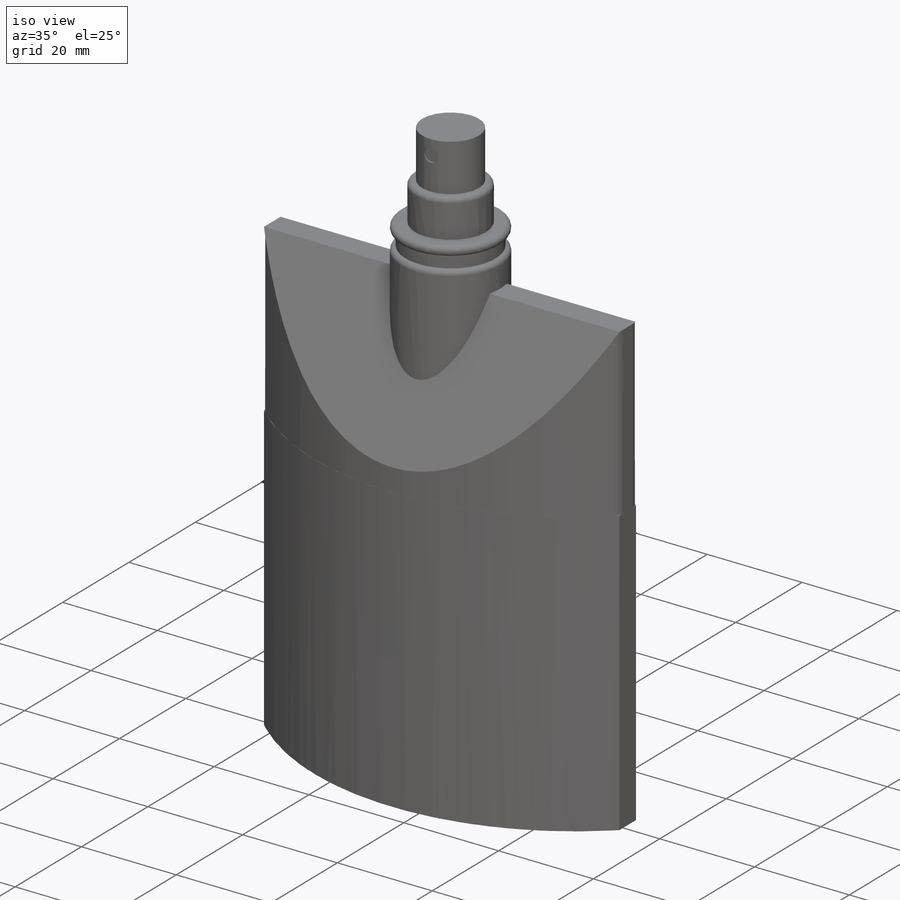
[diagram: iso view]
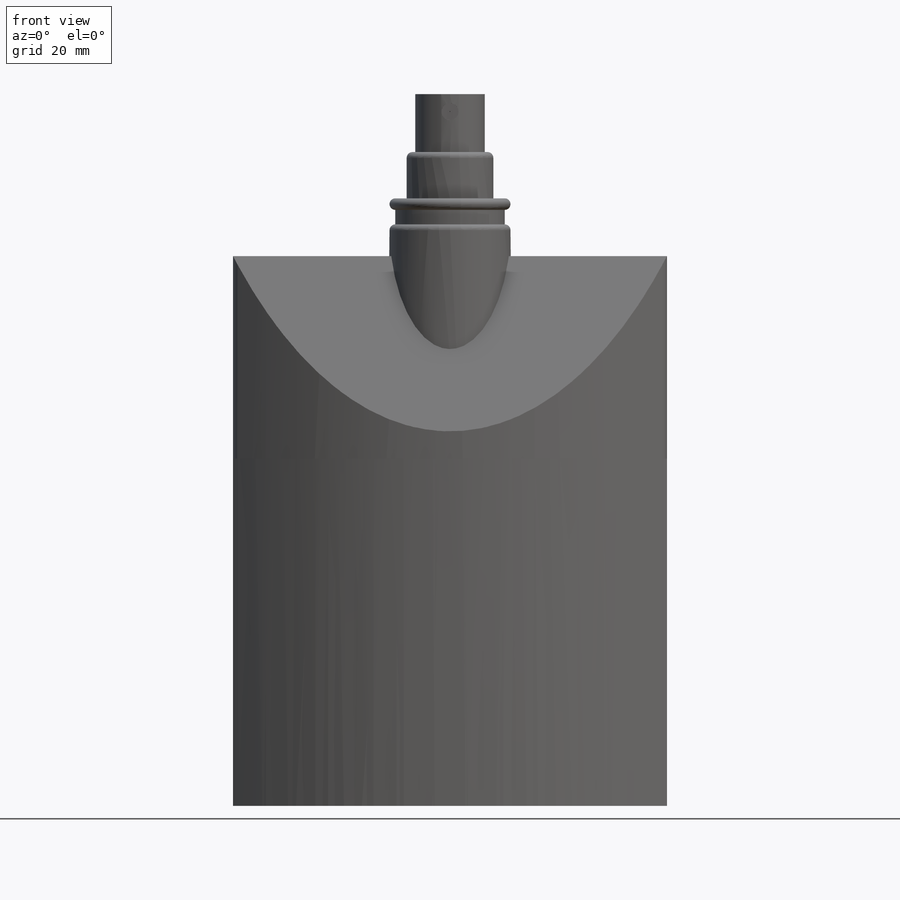
[diagram: front view]
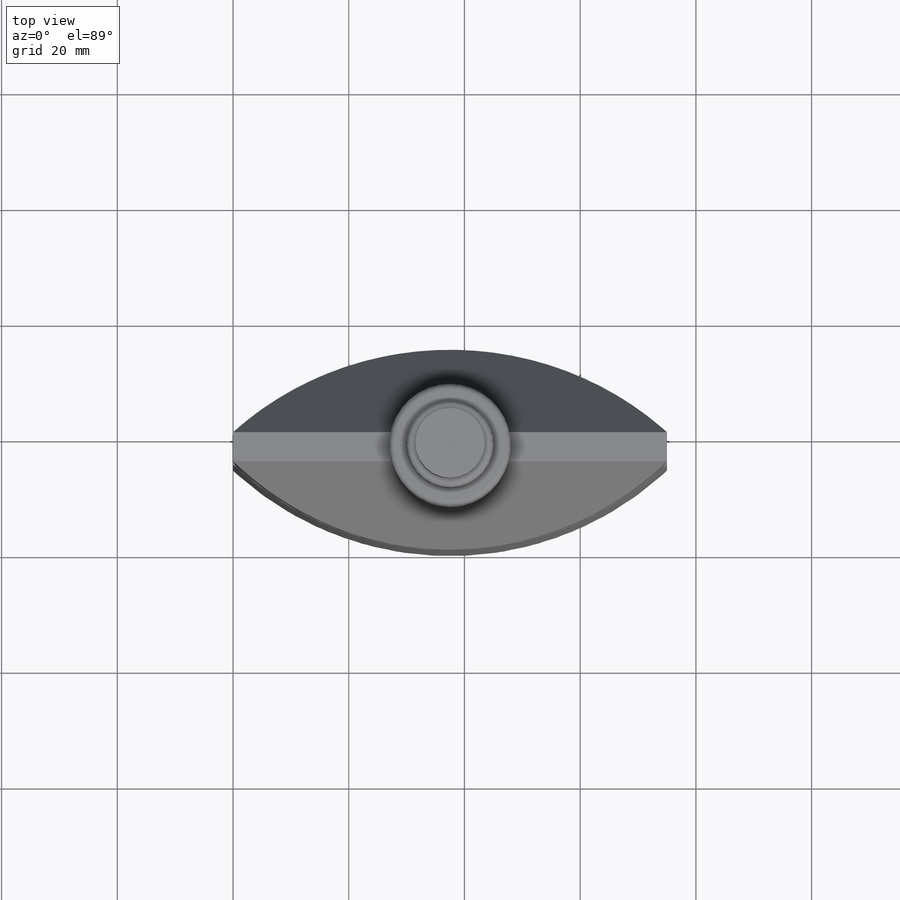
[diagram: top view]
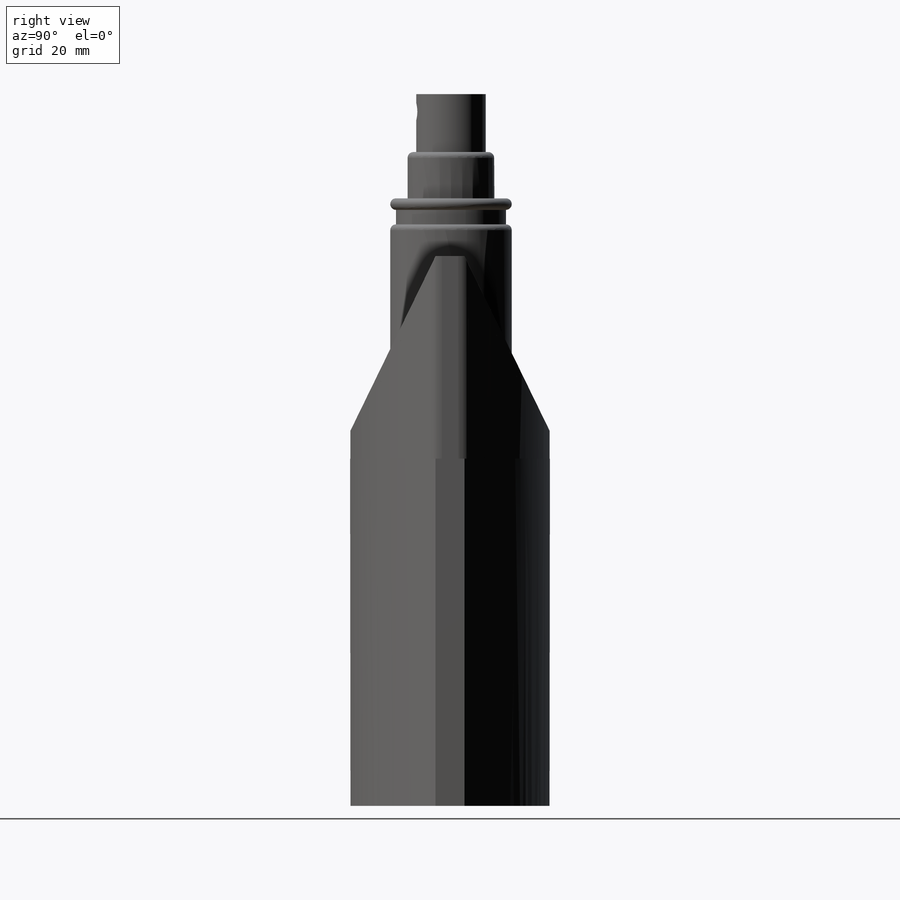
[diagram: right view]
SOLIDWORKS PART (.sldprt)
format: sldprt  version: not decoded by parser v0  size: 1,014,272 bytes
history: native  units: mm
features: sketch x14, cut_extrude x6, extrude x5, plane x3, fillet x3, shell x2, material x1 (+16 scaffold rows collapsed)
feature tree (50):
  scaffold x16  (default folders/planes/origin — collapsed)
  material  "Material <not specified>"
  sketch  "Sketch1"  dims[c1.D4=55.0mm c1.D5=55.0mm c1.D6=75.0mm c1.D1=5.0mm c1.D2=5.0mm c1.D3=75.0mm c2.D5=5.0mm c2.D6=~48.91478mm]
  extrude  "Boss-Extrude1"  Depth=95mm
  sketch  "Sketch2"  dims[c1.D1=30.0mm c1.D2=~54.378692mm c2.D2=26.0deg c2.D1=~52.154441mm c3.D1=26.0deg]
  cut_extrude  "Cut-Extrude1"  [1 undecoded]
  shell  "Shell3"  Thickness=1mm
  sketch  "Sketch4"  dims[D2=21.0mm D1=37.5mm]
  extrude  "Boss-Extrude2"  Depth=10mm
  sketch  "Sketch5"  dims[D1=10.0mm]
  cut_extrude  "Cut-Extrude2"  Depth=50mm
  plane  "Plane3"  Offset=2mm
  sketch  "Sketch9"  dims[D1=19.0mm]
  cut_extrude  "Cut-Extrude3"  Depth=2.5mm
  fillet  "Fillet1"  Radius=1mm
  sketch  "Sketch10"  dims[D1=15.0mm]
  extrude  "Boss-Extrude3"  Depth=8mm
  sketch  "Sketch11"  dims[D1=12.0mm]
  cut_extrude  "Cut-Extrude4"  Depth=10mm
  sketch  "Sketch12"
  extrude  "Boss-Extrude4"  Depth=20mm
  fillet  "Fillet6"  Radius=1mm
  plane  "Plane4"  Offset=8mm
  sketch  "Sketch13"  dims[c1.D1=6.0mm c1.D2=~6.709214mm c2.D1=12.0mm]
  cut_extrude  "Cut-Extrude5"  Depth=10mm
  sketch  "Sketch14"
  extrude  "Boss-Extrude5"  Depth=1mm
  sketch  "Sketch15"  dims[D1=0.2mm]
  cut_extrude  "Cut-Extrude6"  Depth=2mm
  sketch  "3DSketch1"  dims[c1.D1=~6.81886mm c1.D2=4.0mm c2.D1=~4.716326mm c2.D3=4.0mm c2.D2=~2.572027mm c3.D1=2.5mm c3.D2=~0.319061mm]
  sketch  "3DSketch3"
  fillet  "Fillet10"  Radius=2.5mm
  plane  "Plane5"  Offset=60mm
  sketch  "3DSketch4"
  shell  "Surface-Knit2"  [1 undecoded]
decode coverage: 24 of 30 modeling features carry decoded parameters
note: ~ marks probable driven/reference dimensions
note: 2 parameter values undecoded
note: suppression state not decoded; provenance and decode notes live in map.json
